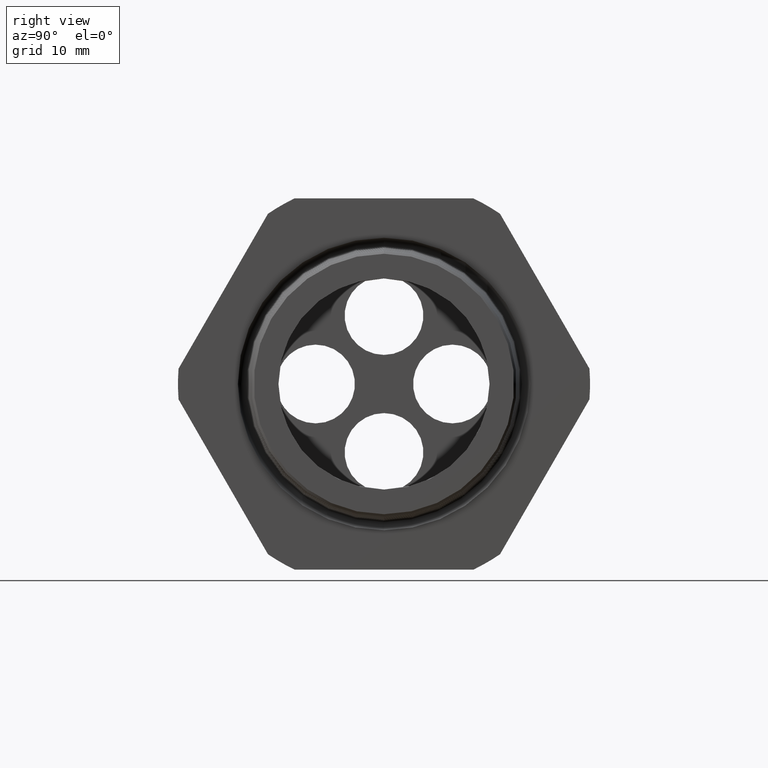
[diagram: clean part render]
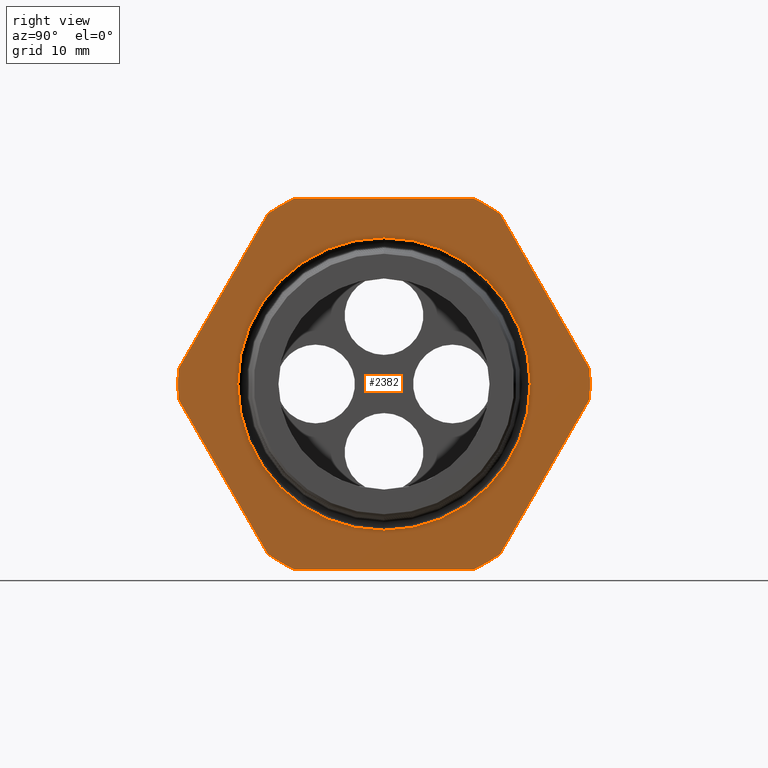
[diagram: same view with one face highlighted and labeled with its STEP entity id]
A machine part, right view. The second image highlights one B-rep face of the part: STEP entity #2382.
In plain terms, the highlighted planar face has unit normal (1, 0, 0).
Its self-contained STEP definition (entity closure, byte-faithful):
#1673 = CARTESIAN_POINT ( 'NONE',  ( -0.3100000000000000000, 7.959559582214716800E-017, 0.6499473634158414700 ) ) ;
#2206 = EDGE_CURVE ( 'NONE', #7724, #2209, #6311, .T. ) ;
#2209 = VERTEX_POINT ( 'NONE', #6297 ) ;
#2380 = EDGE_LOOP ( 'NONE', ( #5094, #5096 ) ) ;
#2382 = ADVANCED_FACE ( 'NONE', ( #2747, #2746 ), #2745, .T. ) ;
#2534 = DIRECTION ( 'NONE',  ( 1.000000000000000000, 0.0000000000000000000, 0.0000000000000000000 ) ) ;
#2537 = CARTESIAN_POINT ( 'NONE',  ( -0.3100000000000000000, 0.0000000000000000000, 0.0000000000000000000 ) ) ;
#2541 = DIRECTION ( 'NONE',  ( 0.0000000000000000000, 0.0000000000000000000, -1.000000000000000000 ) ) ;
#2741 = DIRECTION ( 'NONE',  ( 0.0000000000000000000, 0.0000000000000000000, -1.000000000000000000 ) ) ;
#2742 = DIRECTION ( 'NONE',  ( 1.000000000000000000, 0.0000000000000000000, 0.0000000000000000000 ) ) ;
#2743 = CARTESIAN_POINT ( 'NONE',  ( -0.3100000000000000000, 1.649999999999999900, 0.0000000000000000000 ) ) ;
#2744 = AXIS2_PLACEMENT_3D ( 'NONE', #2743, #2742, #2741 ) ;
#2745 = PLANE ( 'NONE',  #2744 ) ;
#2746 = FACE_OUTER_BOUND ( 'NONE', #5097, .T. ) ;
#2747 = FACE_BOUND ( 'NONE', #2380, .T. ) ;
#3519 = DIRECTION ( 'NONE',  ( 0.0000000000000000000, 0.0000000000000000000, -1.000000000000000000 ) ) ;
#3520 = DIRECTION ( 'NONE',  ( 1.000000000000000000, 0.0000000000000000000, 0.0000000000000000000 ) ) ;
#3521 = CARTESIAN_POINT ( 'NONE',  ( -0.3100000000000000000, 0.0000000000000000000, 0.0000000000000000000 ) ) ;
#3522 = AXIS2_PLACEMENT_3D ( 'NONE', #3521, #3520, #3519 ) ;
#3523 = CIRCLE ( 'NONE', #3522, 0.9157500000000000600 ) ;
#3545 = AXIS2_PLACEMENT_3D ( 'NONE', #2537, #2534, #2541 ) ;
#3546 = CIRCLE ( 'NONE', #3545, 0.6499473634158414700 ) ;
#3548 = CARTESIAN_POINT ( 'NONE',  ( -0.3100000000000000000, -0.9132000843845193800, -0.06829105636982593700 ) ) ;
#3549 = DIRECTION ( 'NONE',  ( 0.0000000000000000000, 0.0000000000000000000, -1.000000000000000000 ) ) ;
#3550 = DIRECTION ( 'NONE',  ( 1.000000000000000000, 0.0000000000000000000, 0.0000000000000000000 ) ) ;
#3551 = CARTESIAN_POINT ( 'NONE',  ( -0.3100000000000000000, 0.0000000000000000000, 0.0000000000000000000 ) ) ;
#3552 = AXIS2_PLACEMENT_3D ( 'NONE', #3551, #3550, #3549 ) ;
#3553 = CIRCLE ( 'NONE', #3552, 0.9157500000000000600 ) ;
#3554 = CARTESIAN_POINT ( 'NONE',  ( -0.3100000000000000000, -0.9132000843845194900, 0.06829105636982570100 ) ) ;
#3555 = DIRECTION ( 'NONE',  ( 0.0000000000000000000, -0.4999999999999997200, -0.8660254037844388200 ) ) ;
#3556 = VECTOR ( 'NONE', #3555, 39.37007874015748900 ) ;
#3557 = CARTESIAN_POINT ( 'NONE',  ( -0.3100000000000000000, -0.3019709581221625100, 1.126970958122161400 ) ) ;
#3558 = LINE ( 'NONE', #3557, #3556 ) ;
#3559 = CARTESIAN_POINT ( 'NONE',  ( -0.3100000000000000000, -0.5157418318598044900, 0.7567089436301736000 ) ) ;
#3560 = DIRECTION ( 'NONE',  ( 0.0000000000000000000, 0.0000000000000000000, -1.000000000000000000 ) ) ;
#3561 = DIRECTION ( 'NONE',  ( 1.000000000000000000, 0.0000000000000000000, 0.0000000000000000000 ) ) ;
#3562 = CARTESIAN_POINT ( 'NONE',  ( -0.3100000000000000000, 0.0000000000000000000, 0.0000000000000000000 ) ) ;
#3563 = AXIS2_PLACEMENT_3D ( 'NONE', #3562, #3561, #3560 ) ;
#3564 = CIRCLE ( 'NONE', #3563, 0.9157500000000000600 ) ;
#3565 = CARTESIAN_POINT ( 'NONE',  ( -0.3100000000000000000, -0.3974582525247157800, 0.8249999999999995100 ) ) ;
#3566 = DIRECTION ( 'NONE',  ( 0.0000000000000000000, -1.000000000000000000, 0.0000000000000000000 ) ) ;
#3567 = VECTOR ( 'NONE', #3566, 39.37007874015748100 ) ;
#3568 = CARTESIAN_POINT ( 'NONE',  ( -0.3100000000000000000, 1.649999999999999900, 0.8249999999999998400 ) ) ;
#3569 = LINE ( 'NONE', #3568, #3567 ) ;
#3570 = CARTESIAN_POINT ( 'NONE',  ( -0.3100000000000000000, 0.3974582525247153400, 0.8249999999999998400 ) ) ;
#3571 = DIRECTION ( 'NONE',  ( 0.0000000000000000000, 0.0000000000000000000, -1.000000000000000000 ) ) ;
#3572 = DIRECTION ( 'NONE',  ( 1.000000000000000000, 0.0000000000000000000, 0.0000000000000000000 ) ) ;
#3573 = CARTESIAN_POINT ( 'NONE',  ( -0.3100000000000000000, 0.0000000000000000000, 0.0000000000000000000 ) ) ;
#3574 = AXIS2_PLACEMENT_3D ( 'NONE', #3573, #3572, #3571 ) ;
#3575 = CIRCLE ( 'NONE', #3574, 0.9157500000000000600 ) ;
#3589 = CARTESIAN_POINT ( 'NONE',  ( -0.3100000000000000000, 0.5157418318598044900, 0.7567089436301736000 ) ) ;
#3590 = DIRECTION ( 'NONE',  ( 0.0000000000000000000, -0.4999999999999998300, 0.8660254037844386000 ) ) ;
#3591 = VECTOR ( 'NONE', #3590, 39.37007874015748900 ) ;
#3592 = CARTESIAN_POINT ( 'NONE',  ( -0.3100000000000000000, 1.126970958122161900, -0.3019709581221617400 ) ) ;
#3593 = LINE ( 'NONE', #3592, #3591 ) ;
#3594 = CARTESIAN_POINT ( 'NONE',  ( -0.3100000000000000000, 0.9132000843845192700, 0.06829105636982647800 ) ) ;
#3595 = DIRECTION ( 'NONE',  ( 0.0000000000000000000, 0.0000000000000000000, -1.000000000000000000 ) ) ;
#3596 = DIRECTION ( 'NONE',  ( 1.000000000000000000, 0.0000000000000000000, 0.0000000000000000000 ) ) ;
#3597 = CARTESIAN_POINT ( 'NONE',  ( -0.3100000000000000000, 0.0000000000000000000, 0.0000000000000000000 ) ) ;
#3598 = AXIS2_PLACEMENT_3D ( 'NONE', #3597, #3596, #3595 ) ;
#3599 = CIRCLE ( 'NONE', #3598, 0.9157499999999999500 ) ;
#3600 = CARTESIAN_POINT ( 'NONE',  ( -0.3100000000000000000, 0.9132000843845194900, -0.06829105636982671400 ) ) ;
#3601 = CARTESIAN_POINT ( 'NONE',  ( -0.3100000000000000000, 0.5157418318598049300, -0.7567089436301733800 ) ) ;
#3602 = DIRECTION ( 'NONE',  ( 0.0000000000000000000, 0.4999999999999998300, 0.8660254037844386000 ) ) ;
#3603 = VECTOR ( 'NONE', #3602, 39.37007874015748900 ) ;
#3604 = CARTESIAN_POINT ( 'NONE',  ( -0.3100000000000000000, 1.126970958122162100, 0.3019709581221616800 ) ) ;
#3605 = LINE ( 'NONE', #3604, #3603 ) ;
#3672 = CARTESIAN_POINT ( 'NONE',  ( -0.3100000000000000000, 0.3974582525247150100, -0.8249999999999999600 ) ) ;
#3673 = DIRECTION ( 'NONE',  ( 0.0000000000000000000, 1.000000000000000000, 0.0000000000000000000 ) ) ;
#3674 = VECTOR ( 'NONE', #3673, 39.37007874015748100 ) ;
#3675 = CARTESIAN_POINT ( 'NONE',  ( -0.3100000000000000000, 1.649999999999999900, -0.8250000000000000700 ) ) ;
#3676 = LINE ( 'NONE', #3675, #3674 ) ;
#3677 = CARTESIAN_POINT ( 'NONE',  ( -0.3100000000000000000, -0.3974582525247148400, -0.8250000000000000700 ) ) ;
#3678 = DIRECTION ( 'NONE',  ( 0.0000000000000000000, 0.0000000000000000000, -1.000000000000000000 ) ) ;
#3679 = DIRECTION ( 'NONE',  ( 1.000000000000000000, 0.0000000000000000000, 0.0000000000000000000 ) ) ;
#3680 = CARTESIAN_POINT ( 'NONE',  ( -0.3100000000000000000, 0.0000000000000000000, 0.0000000000000000000 ) ) ;
#3681 = AXIS2_PLACEMENT_3D ( 'NONE', #3680, #3679, #3678 ) ;
#3682 = CIRCLE ( 'NONE', #3681, 0.9157500000000000600 ) ;
#3683 = CARTESIAN_POINT ( 'NONE',  ( -0.3100000000000000000, -0.5157418318598037100, -0.7567089436301741600 ) ) ;
#3684 = DIRECTION ( 'NONE',  ( 0.0000000000000000000, 0.5000000000000001100, -0.8660254037844384900 ) ) ;
#3685 = VECTOR ( 'NONE', #3684, 39.37007874015748900 ) ;
#3686 = CARTESIAN_POINT ( 'NONE',  ( -0.3100000000000000000, -0.3019709581221617400, -1.126970958122162300 ) ) ;
#3687 = LINE ( 'NONE', #3686, #3685 ) ;
#5074 = ORIENTED_EDGE ( 'NONE', *, *, #5075, .T. ) ;
#5075 = EDGE_CURVE ( 'NONE', #5156, #5100, #3523, .T. ) ;
#5079 = ORIENTED_EDGE ( 'NONE', *, *, #5080, .T. ) ;
#5080 = EDGE_CURVE ( 'NONE', #5107, #5081, #3575, .T. ) ;
#5081 = VERTEX_POINT ( 'NONE', #3570 ) ;
#5082 = ORIENTED_EDGE ( 'NONE', *, *, #5083, .T. ) ;
#5083 = EDGE_CURVE ( 'NONE', #5081, #5084, #3569, .T. ) ;
#5084 = VERTEX_POINT ( 'NONE', #3565 ) ;
#5085 = ORIENTED_EDGE ( 'NONE', *, *, #5086, .T. ) ;
#5086 = EDGE_CURVE ( 'NONE', #5084, #5087, #3564, .T. ) ;
#5087 = VERTEX_POINT ( 'NONE', #3559 ) ;
#5088 = ORIENTED_EDGE ( 'NONE', *, *, #5089, .T. ) ;
#5089 = EDGE_CURVE ( 'NONE', #5087, #5090, #3558, .T. ) ;
#5090 = VERTEX_POINT ( 'NONE', #3554 ) ;
#5091 = ORIENTED_EDGE ( 'NONE', *, *, #5092, .T. ) ;
#5092 = EDGE_CURVE ( 'NONE', #5090, #5093, #3553, .T. ) ;
#5093 = VERTEX_POINT ( 'NONE', #3548 ) ;
#5094 = ORIENTED_EDGE ( 'NONE', *, *, #5095, .F. ) ;
#5095 = EDGE_CURVE ( 'NONE', #2209, #7724, #3546, .T. ) ;
#5096 = ORIENTED_EDGE ( 'NONE', *, *, #2206, .F. ) ;
#5097 = EDGE_LOOP ( 'NONE', ( #5098, #5102, #5105, #5079, #5082, #5085, #5088, #5091, #5148, #5151, #5154, #5074 ) ) ;
#5098 = ORIENTED_EDGE ( 'NONE', *, *, #5099, .T. ) ;
#5099 = EDGE_CURVE ( 'NONE', #5100, #5101, #3605, .T. ) ;
#5100 = VERTEX_POINT ( 'NONE', #3601 ) ;
#5101 = VERTEX_POINT ( 'NONE', #3600 ) ;
#5102 = ORIENTED_EDGE ( 'NONE', *, *, #5103, .T. ) ;
#5103 = EDGE_CURVE ( 'NONE', #5101, #5104, #3599, .T. ) ;
#5104 = VERTEX_POINT ( 'NONE', #3594 ) ;
#5105 = ORIENTED_EDGE ( 'NONE', *, *, #5106, .T. ) ;
#5106 = EDGE_CURVE ( 'NONE', #5104, #5107, #3593, .T. ) ;
#5107 = VERTEX_POINT ( 'NONE', #3589 ) ;
#5148 = ORIENTED_EDGE ( 'NONE', *, *, #5149, .T. ) ;
#5149 = EDGE_CURVE ( 'NONE', #5093, #5150, #3687, .T. ) ;
#5150 = VERTEX_POINT ( 'NONE', #3683 ) ;
#5151 = ORIENTED_EDGE ( 'NONE', *, *, #5152, .T. ) ;
#5152 = EDGE_CURVE ( 'NONE', #5150, #5153, #3682, .T. ) ;
#5153 = VERTEX_POINT ( 'NONE', #3677 ) ;
#5154 = ORIENTED_EDGE ( 'NONE', *, *, #5155, .T. ) ;
#5155 = EDGE_CURVE ( 'NONE', #5153, #5156, #3676, .T. ) ;
#5156 = VERTEX_POINT ( 'NONE', #3672 ) ;
#6297 = CARTESIAN_POINT ( 'NONE',  ( -0.3100000000000000000, 0.0000000000000000000, -0.6499473634158414700 ) ) ;
#6307 = DIRECTION ( 'NONE',  ( 0.0000000000000000000, 0.0000000000000000000, -1.000000000000000000 ) ) ;
#6308 = DIRECTION ( 'NONE',  ( 1.000000000000000000, 0.0000000000000000000, 0.0000000000000000000 ) ) ;
#6309 = CARTESIAN_POINT ( 'NONE',  ( -0.3100000000000000000, 0.0000000000000000000, 0.0000000000000000000 ) ) ;
#6310 = AXIS2_PLACEMENT_3D ( 'NONE', #6309, #6308, #6307 ) ;
#6311 = CIRCLE ( 'NONE', #6310, 0.6499473634158414700 ) ;
#7724 = VERTEX_POINT ( 'NONE', #1673 ) ;